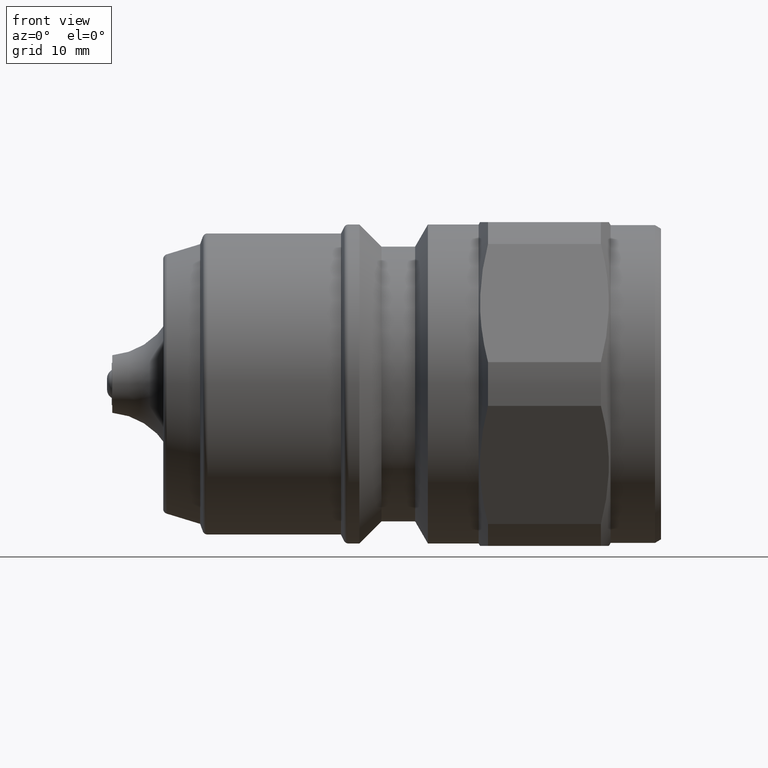
[diagram: clean part render]
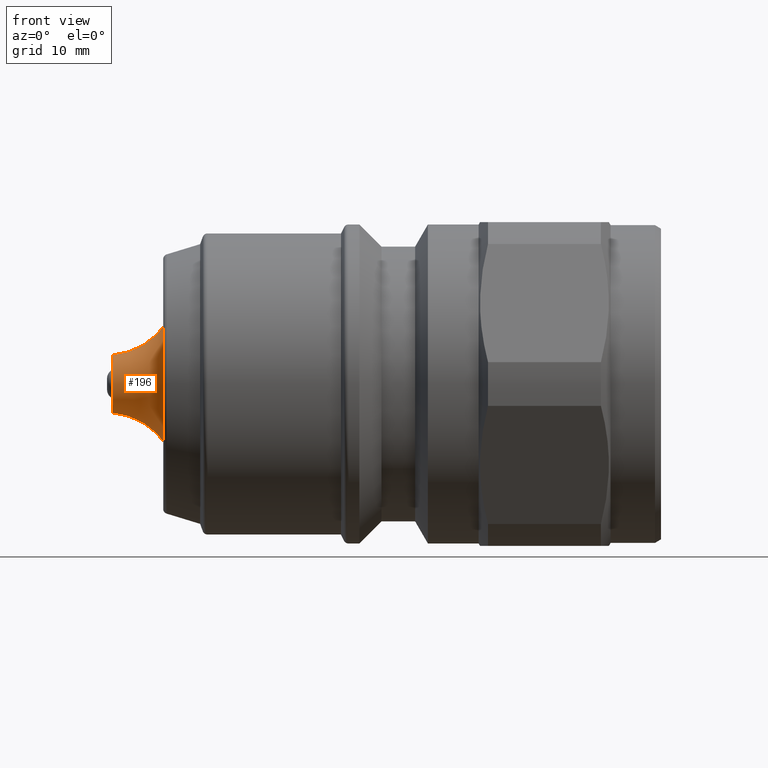
[diagram: same view with one face highlighted and labeled with its STEP entity id]
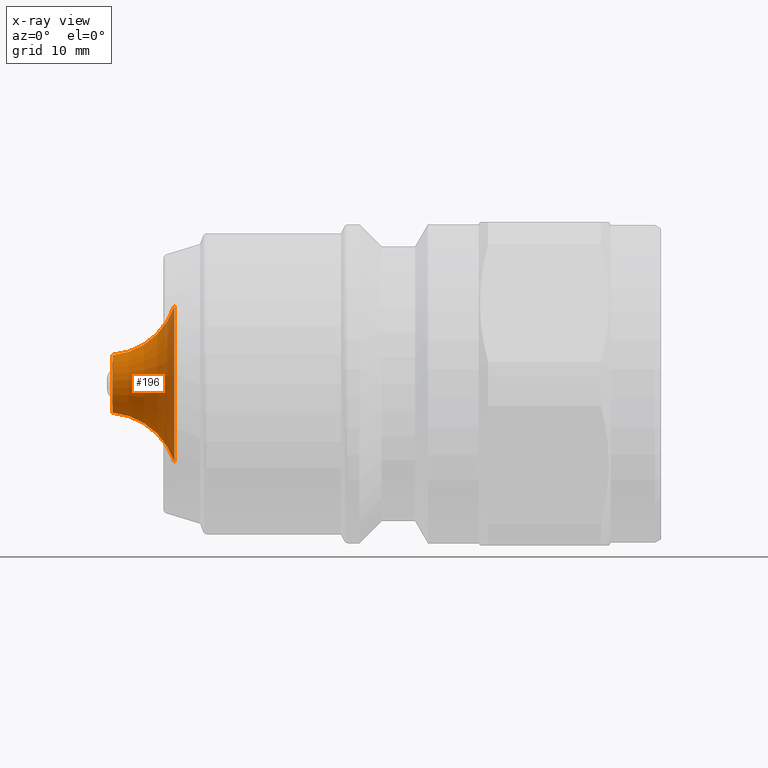
[diagram: x-ray of the same camera — body ghosted, the highlighted face saturated]
A machine part, front view. The second image highlights one B-rep face of the part: STEP entity #196.
The next image is the same camera in x-ray: the body ghosted, the highlighted face saturated — about 5% of this face is hidden behind the body in this view.
In plain terms, the highlighted toroidal blend (fillet) surface has major radius 8.3772 mm and minor (blend) radius 6 mm.
Its self-contained STEP definition (entity closure, byte-faithful):
#23 = VERTEX_POINT ( 'NONE', #107 ) ;
#107 = CARTESIAN_POINT ( 'NONE',  ( -45.74600000000000200, 5.449678256205737600E-016, -2.399999999999999900 ) ) ;
#196 = ADVANCED_FACE ( 'NONE', ( #933 ), #939, .F. ) ;
#302 = CARTESIAN_POINT ( 'NONE',  ( -45.74600000000000200, 0.0000000000000000000, 2.399999999999999900 ) ) ;
#315 = CARTESIAN_POINT ( 'NONE',  ( -40.57016005053869600, 7.960204194457795500E-016, -6.500000000000000000 ) ) ;
#449 = CARTESIAN_POINT ( 'NONE',  ( -40.57016005053869600, 0.0000000000000000000, 6.500000000000000000 ) ) ;
#556 = ORIENTED_EDGE ( 'NONE', *, *, #1516, .F. ) ;
#672 = ORIENTED_EDGE ( 'NONE', *, *, #1515, .T. ) ;
#674 = ORIENTED_EDGE ( 'NONE', *, *, #1514, .T. ) ;
#675 = ORIENTED_EDGE ( 'NONE', *, *, #1513, .F. ) ;
#801 = EDGE_LOOP ( 'NONE', ( #556, #672, #674, #675 ) ) ;
#933 = FACE_OUTER_BOUND ( 'NONE', #801, .T. ) ;
#939 = TOROIDAL_SURFACE ( 'NONE', #1351, 8.377166529799279000, 6.000000000000000000 ) ;
#1126 = DIRECTION ( 'NONE',  ( -1.000000000000000000, 0.0000000000000000000, 0.0000000000000000000 ) ) ;
#1127 = DIRECTION ( 'NONE',  ( 0.0000000000000000000, 0.0000000000000000000, 1.000000000000000000 ) ) ;
#1140 = CARTESIAN_POINT ( 'NONE',  ( -46.26895341575220000, 0.0000000000000000000, 8.377166529799279000 ) ) ;
#1153 = VERTEX_POINT ( 'NONE', #449 ) ;
#1157 = VERTEX_POINT ( 'NONE', #302 ) ;
#1162 = VERTEX_POINT ( 'NONE', #315 ) ;
#1205 = CARTESIAN_POINT ( 'NONE',  ( -46.26895341575220000, 1.025907017664302700E-015, -8.377166529799279000 ) ) ;
#1206 = DIRECTION ( 'NONE',  ( 0.0000000000000000000, 1.000000000000000000, 1.224646799147353200E-016 ) ) ;
#1207 = DIRECTION ( 'NONE',  ( 0.0000000000000000000, -1.224646799147353200E-016, 1.000000000000000000 ) ) ;
#1208 = CARTESIAN_POINT ( 'NONE',  ( -45.74600000000000200, 0.0000000000000000000, 0.0000000000000000000 ) ) ;
#1209 = DIRECTION ( 'NONE',  ( -1.000000000000000000, 0.0000000000000000000, 0.0000000000000000000 ) ) ;
#1210 = DIRECTION ( 'NONE',  ( 0.0000000000000000000, 0.0000000000000000000, 1.000000000000000000 ) ) ;
#1351 = AXIS2_PLACEMENT_3D ( 'NONE', #1548, #1550, #1549 ) ;
#1513 = EDGE_CURVE ( 'NONE', #1157, #1153, #2020, .T. ) ;
#1514 = EDGE_CURVE ( 'NONE', #1162, #1153, #2021, .T. ) ;
#1515 = EDGE_CURVE ( 'NONE', #23, #1162, #2038, .T. ) ;
#1516 = EDGE_CURVE ( 'NONE', #23, #1157, #2000, .T. ) ;
#1548 = CARTESIAN_POINT ( 'NONE',  ( -46.26895341575220000, 0.0000000000000000000, 0.0000000000000000000 ) ) ;
#1549 = DIRECTION ( 'NONE',  ( 0.0000000000000000000, 0.0000000000000000000, 1.000000000000000000 ) ) ;
#1550 = DIRECTION ( 'NONE',  ( -1.000000000000000000, 0.0000000000000000000, 0.0000000000000000000 ) ) ;
#1666 = CARTESIAN_POINT ( 'NONE',  ( -40.57016005053869600, 0.0000000000000000000, 0.0000000000000000000 ) ) ;
#1667 = DIRECTION ( 'NONE',  ( 0.0000000000000000000, -1.000000000000000000, 0.0000000000000000000 ) ) ;
#1668 = DIRECTION ( 'NONE',  ( 0.0000000000000000000, 0.0000000000000000000, -1.000000000000000000 ) ) ;
#1957 = AXIS2_PLACEMENT_3D ( 'NONE', #1140, #1667, #1668 ) ;
#1972 = AXIS2_PLACEMENT_3D ( 'NONE', #1666, #1126, #1127 ) ;
#1987 = AXIS2_PLACEMENT_3D ( 'NONE', #1208, #1209, #1210 ) ;
#1990 = AXIS2_PLACEMENT_3D ( 'NONE', #1205, #1206, #1207 ) ;
#2000 = CIRCLE ( 'NONE', #1987, 2.399999999999999900 ) ;
#2020 = CIRCLE ( 'NONE', #1957, 6.000000000000000000 ) ;
#2021 = CIRCLE ( 'NONE', #1972, 6.500000000000000000 ) ;
#2038 = CIRCLE ( 'NONE', #1990, 6.000000000000000000 ) ;